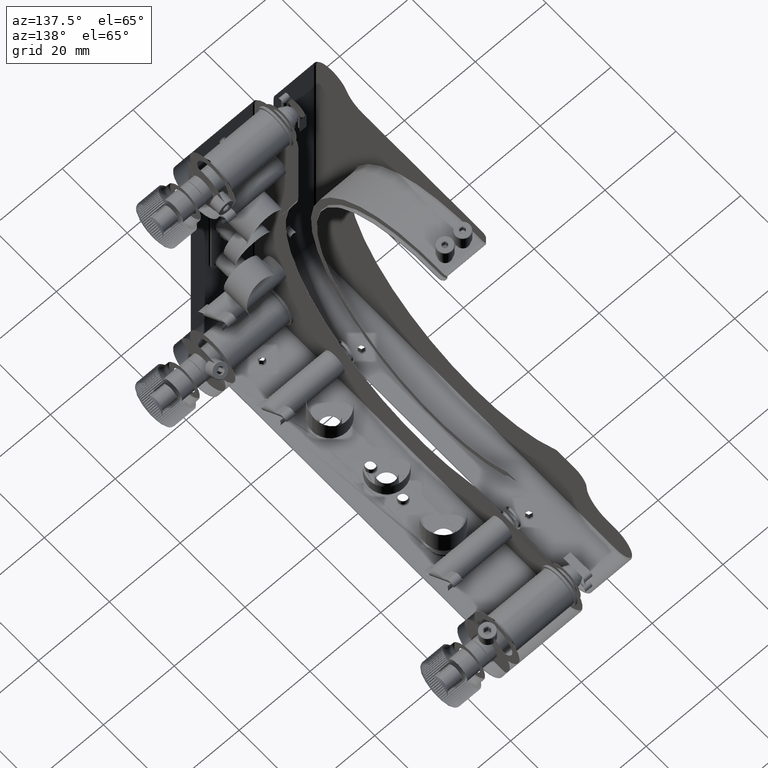
[diagram: clean part render]
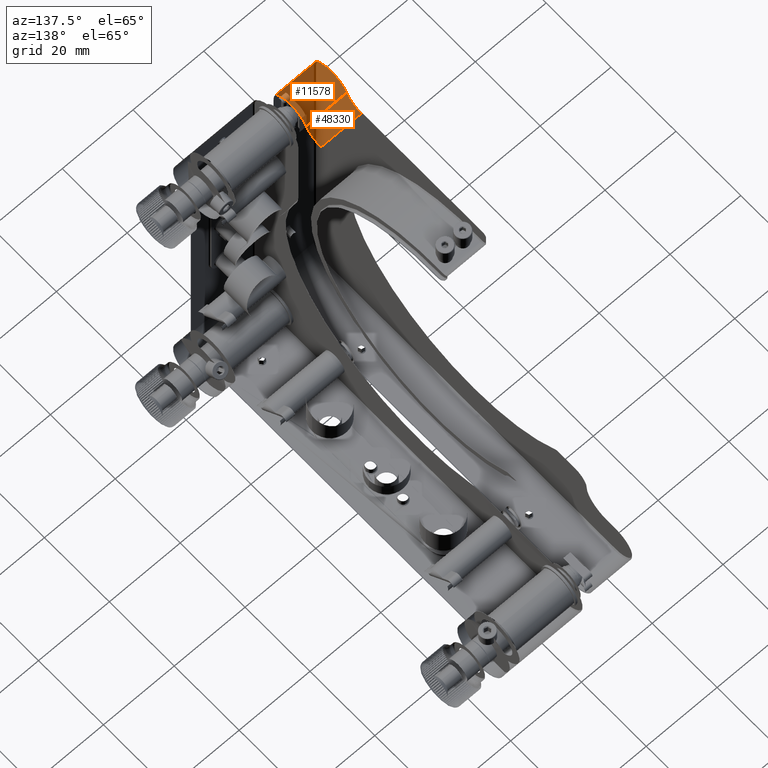
[diagram: same view with one multi-face feature highlighted, each face labeled with its STEP entity id]
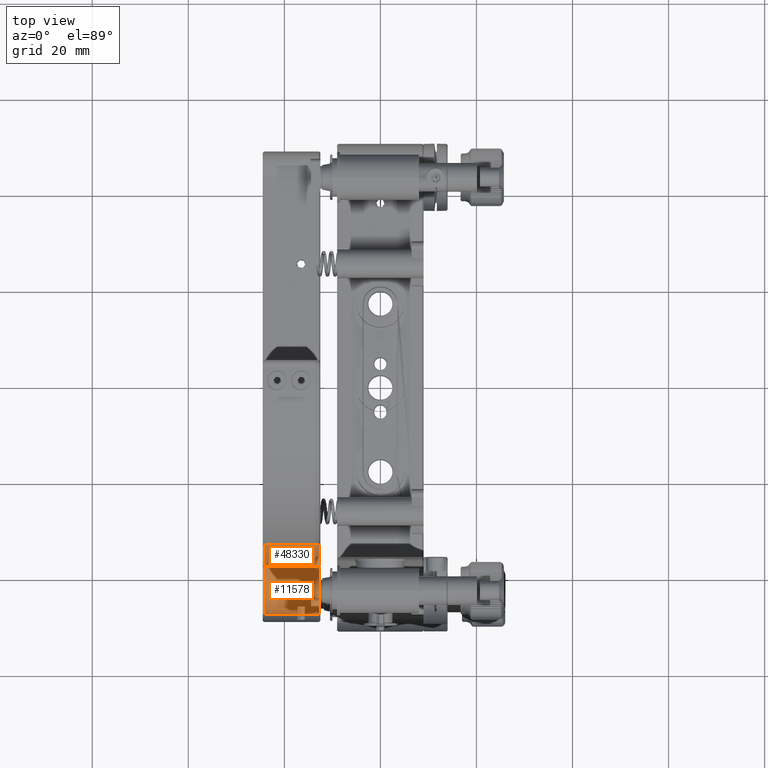
[diagram: same view with one multi-face feature highlighted, each face labeled with its STEP entity id]
A machine part, auxiliary view. The highlighted faces form ONE feature: a constant-radius fillet chain: 2 tangent blend faces with common blend radius 5.125 mm. The faces share edges in the B-rep.
A second angle (top view) of the same feature is appended — it is thin or edge-on in the first view.
Their STEP definitions:
[1] entity #48330 (Cylinder):
#1466 = DIRECTION ( 'NONE',  ( -1.000000000000000000, 1.614358681044906419E-32, -8.466897840272599049E-17 ) ) ;
#1739 = CARTESIAN_POINT ( 'NONE',  ( -12.50000000000001776, -34.17770038891200812, 43.09999999999998721 ) ) ;
#1847 = LINE ( 'NONE', #10526, #16380 ) ;
#2360 = CARTESIAN_POINT ( 'NONE',  ( -24.20000000000001350, -34.17770038891200812, 43.09999999999998721 ) ) ;
#2782 = EDGE_LOOP ( 'NONE', ( #6252, #21807, #16196, #21691 ) ) ;
#3264 = AXIS2_PLACEMENT_3D ( 'NONE', #26625, #22573, #5752 ) ;
#4226 = VECTOR ( 'NONE', #1466, 1000.000000000000000 ) ;
#4597 = CARTESIAN_POINT ( 'NONE',  ( -24.20000000000001350, -34.17770038891200812, 48.09999999999998010 ) ) ;
#5148 = CARTESIAN_POINT ( 'NONE',  ( -24.20000000001610729, -38.74955385775816552, 46.07560975608793541 ) ) ;
#5491 = FACE_OUTER_BOUND ( 'NONE', #2782, .T. ) ;
#5752 = DIRECTION ( 'NONE',  ( 0.000000000000000000, 0.000000000000000000, -1.000000000000000000 ) ) ;
#5855 = CARTESIAN_POINT ( 'NONE',  ( -12.79999999997016857, -34.17770038891200812, 48.09999999999998010 ) ) ;
#6132 = DIRECTION ( 'NONE',  ( 0.000000000000000000, -1.000000000000000000, 0.000000000000000000 ) ) ;
#6252 = ORIENTED_EDGE ( 'NONE', *, *, #40165, .T. ) ;
#6925 = AXIS2_PLACEMENT_3D ( 'NONE', #4597, #33299, #49784 ) ;
#10526 = CARTESIAN_POINT ( 'NONE',  ( -12.50000000000001776, -38.74955385773541394, 46.07560975609756326 ) ) ;
#11845 = VERTEX_POINT ( 'NONE', #5148 ) ;
#14479 = LINE ( 'NONE', #1739, #4226 ) ;
#14715 = CYLINDRICAL_SURFACE ( 'NONE', #3264, 4.999999999999997335 ) ;
#16196 = ORIENTED_EDGE ( 'NONE', *, *, #47101, .F. ) ;
#16380 = VECTOR ( 'NONE', #21908, 1000.000000000000000 ) ;
#21691 = ORIENTED_EDGE ( 'NONE', *, *, #50409, .T. ) ;
#21807 = ORIENTED_EDGE ( 'NONE', *, *, #23723, .F. ) ;
#21908 = DIRECTION ( 'NONE',  ( -1.000000000000000000, -7.674958136682377096E-17, -8.466897840272592886E-17 ) ) ;
#22573 = DIRECTION ( 'NONE',  ( 1.000000000000000000, 7.674958136682377096E-17, 8.466897840272592886E-17 ) ) ;
#23366 = CIRCLE ( 'NONE', #6925, 4.999999999999997335 ) ;
#23723 = EDGE_CURVE ( 'NONE', #37813, #32285, #14479, .T. ) ;
#24265 = CARTESIAN_POINT ( 'NONE',  ( -12.79999999999256133, -34.17770038891200812, 43.10000000000182041 ) ) ;
#24437 = VERTEX_POINT ( 'NONE', #35177 ) ;
#26625 = CARTESIAN_POINT ( 'NONE',  ( -12.50000000000001776, -34.17770038891200812, 48.09999999999998010 ) ) ;
#32285 = VERTEX_POINT ( 'NONE', #2360 ) ;
#33299 = DIRECTION ( 'NONE',  ( 1.000000000000000000, 7.674958136682377096E-17, 8.466897840272592886E-17 ) ) ;
#35177 = CARTESIAN_POINT ( 'NONE',  ( -12.79999999992043058, -38.74955385778756067, 46.07560975609222709 ) ) ;
#35663 = DIRECTION ( 'NONE',  ( 1.000000000000000000, 7.674958136682377096E-17, 8.466897840272592886E-17 ) ) ;
#37813 = VERTEX_POINT ( 'NONE', #24265 ) ;
#40165 = EDGE_CURVE ( 'NONE', #11845, #32285, #23366, .T. ) ;
#47101 = EDGE_CURVE ( 'NONE', #24437, #37813, #47328, .T. ) ;
#47328 = CIRCLE ( 'NONE', #48167, 4.999999999992662758 ) ;
#48167 = AXIS2_PLACEMENT_3D ( 'NONE', #5855, #35663, #6132 ) ;
#48330 = ADVANCED_FACE ( 'NONE', ( #5491 ), #14715, .T. ) ;
#49784 = DIRECTION ( 'NONE',  ( 0.000000000000000000, 0.000000000000000000, -1.000000000000000000 ) ) ;
#50409 = EDGE_CURVE ( 'NONE', #24437, #11845, #1847, .T. ) ;
[2] entity #11578 (Cylinder):
#1847 = LINE ( 'NONE', #10526, #16380 ) ;
#4800 = CARTESIAN_POINT ( 'NONE',  ( -12.50000000000001776, -48.80000000000000426, 43.95000000000000284 ) ) ;
#5031 = DIRECTION ( 'NONE',  ( 0.000000000000000000, 0.000000000000000000, -1.000000000000000000 ) ) ;
#5148 = CARTESIAN_POINT ( 'NONE',  ( -24.20000000001610729, -38.74955385775816552, 46.07560975608793541 ) ) ;
#5263 = CARTESIAN_POINT ( 'NONE',  ( -12.80000000002701199, -43.54999999999999716, 43.95000000000001705 ) ) ;
#5504 = EDGE_LOOP ( 'NONE', ( #16897, #11588, #42465, #49308 ) ) ;
#6384 = VERTEX_POINT ( 'NONE', #21751 ) ;
#7572 = EDGE_CURVE ( 'NONE', #35457, #6384, #41894, .T. ) ;
#9596 = DIRECTION ( 'NONE',  ( 1.000000000000000000, 7.674958136682377096E-17, 8.466897840272592886E-17 ) ) ;
#10526 = CARTESIAN_POINT ( 'NONE',  ( -12.50000000000001776, -38.74955385773541394, 46.07560975609756326 ) ) ;
#11578 = ADVANCED_FACE ( 'NONE', ( #23353 ), #31212, .F. ) ;
#11588 = ORIENTED_EDGE ( 'NONE', *, *, #7572, .F. ) ;
#11845 = VERTEX_POINT ( 'NONE', #5148 ) ;
#12886 = DIRECTION ( 'NONE',  ( 1.000000000000000000, 7.674958136682377096E-17, 8.466897840272592886E-17 ) ) ;
#15891 = VECTOR ( 'NONE', #38659, 1000.000000000000000 ) ;
#16380 = VECTOR ( 'NONE', #21908, 1000.000000000000000 ) ;
#16897 = ORIENTED_EDGE ( 'NONE', *, *, #44810, .T. ) ;
#19560 = CARTESIAN_POINT ( 'NONE',  ( -12.50000000000001776, -43.54999999999999716, 43.95000000000001705 ) ) ;
#21751 = CARTESIAN_POINT ( 'NONE',  ( -12.79999999999930438, -48.79999999998055671, 43.95000000000000284 ) ) ;
#21908 = DIRECTION ( 'NONE',  ( -1.000000000000000000, -7.674958136682377096E-17, -8.466897840272592886E-17 ) ) ;
#22148 = CIRCLE ( 'NONE', #32530, 5.250000000007546852 ) ;
#23353 = FACE_OUTER_BOUND ( 'NONE', #5504, .T. ) ;
#24437 = VERTEX_POINT ( 'NONE', #35177 ) ;
#30989 = DIRECTION ( 'NONE',  ( 0.000000000000000000, 1.000000000000000000, 0.000000000000000000 ) ) ;
#31212 = CYLINDRICAL_SURFACE ( 'NONE', #39409, 5.249999999999997335 ) ;
#32530 = AXIS2_PLACEMENT_3D ( 'NONE', #5263, #9596, #30989 ) ;
#35177 = CARTESIAN_POINT ( 'NONE',  ( -12.79999999992043058, -38.74955385778756067, 46.07560975609222709 ) ) ;
#35457 = VERTEX_POINT ( 'NONE', #40982 ) ;
#36084 = DIRECTION ( 'NONE',  ( 1.000000000000000000, 7.674958136682377096E-17, 8.466897840272592886E-17 ) ) ;
#37254 = AXIS2_PLACEMENT_3D ( 'NONE', #49951, #12886, #5031 ) ;
#38659 = DIRECTION ( 'NONE',  ( 1.000000000000000000, 7.674958136682377096E-17, 8.466897840272592886E-17 ) ) ;
#39409 = AXIS2_PLACEMENT_3D ( 'NONE', #19560, #36084, #39876 ) ;
#39876 = DIRECTION ( 'NONE',  ( 0.000000000000000000, 0.000000000000000000, -1.000000000000000000 ) ) ;
#40684 = CIRCLE ( 'NONE', #37254, 5.249999999999997335 ) ;
#40982 = CARTESIAN_POINT ( 'NONE',  ( -24.19999999997347473, -48.80000000003552429, 43.95000000000000284 ) ) ;
#41894 = LINE ( 'NONE', #4800, #15891 ) ;
#42465 = ORIENTED_EDGE ( 'NONE', *, *, #52857, .F. ) ;
#44810 = EDGE_CURVE ( 'NONE', #24437, #6384, #22148, .T. ) ;
#49308 = ORIENTED_EDGE ( 'NONE', *, *, #50409, .F. ) ;
#49951 = CARTESIAN_POINT ( 'NONE',  ( -24.20000000000001350, -43.54999999999999716, 43.95000000000001705 ) ) ;
#50409 = EDGE_CURVE ( 'NONE', #24437, #11845, #1847, .T. ) ;
#52857 = EDGE_CURVE ( 'NONE', #11845, #35457, #40684, .T. ) ;